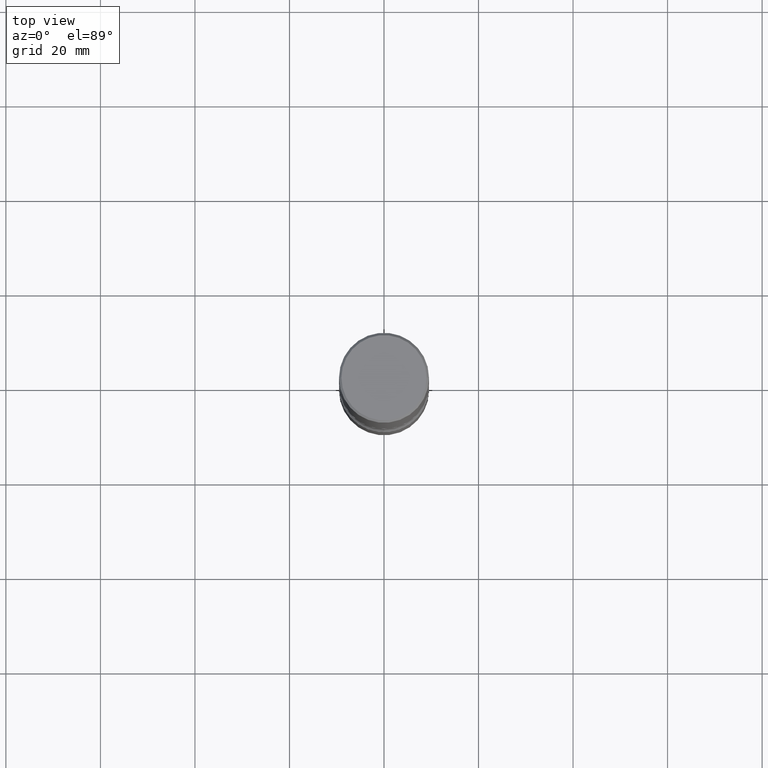
[diagram: clean part render]
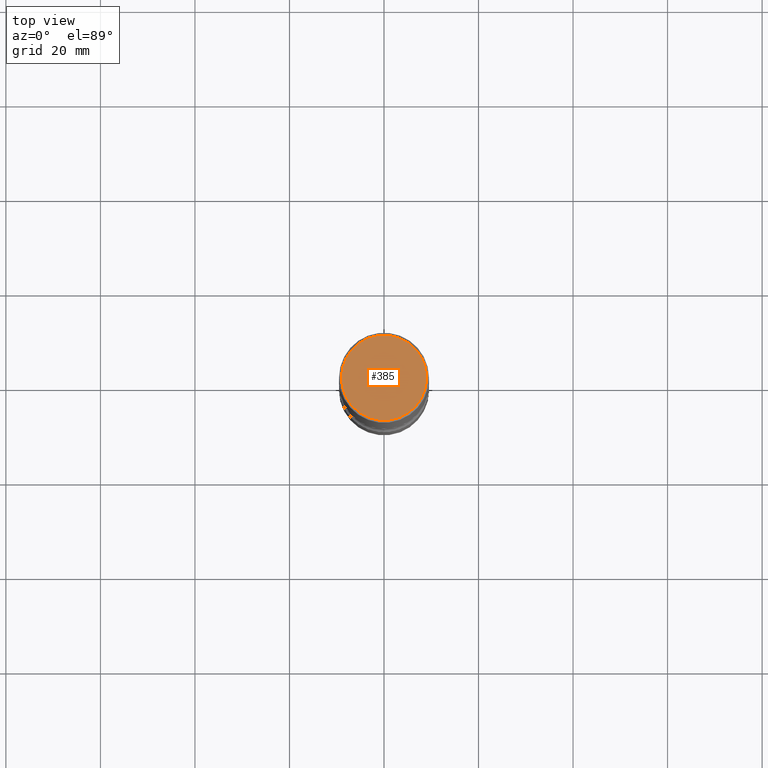
[diagram: same view with one face highlighted and labeled with its STEP entity id]
A machine part, top view. The second image highlights one B-rep face of the part: STEP entity #385.
In plain terms, the highlighted planar face has unit normal (0, -0, -1).
Its self-contained STEP definition (entity closure, byte-faithful):
#26 = EDGE_LOOP ( 'NONE', ( #511, #251 ) ) ;
#61 = CARTESIAN_POINT ( 'NONE',  ( 2.478951750578624998E-15, 0.3550000000000000377, -1.237341619044266624E-15 ) ) ;
#88 = CARTESIAN_POINT ( 'NONE',  ( -0.3550000000000000377, 2.513866563967055858E-15, 4.268512490082953109E-18 ) ) ;
#110 = EDGE_CURVE ( 'NONE', #413, #199, #512, .T. ) ;
#133 = DIRECTION ( 'NONE',  ( -2.445468806185136597E-29, 3.491481338843145583E-15, 1.000000000000000000 ) ) ;
#144 = CARTESIAN_POINT ( 'NONE',  ( 0.3550000000000000377, -2.538996582575041048E-15, 4.268512490117958041E-18 ) ) ;
#146 = AXIS2_PLACEMENT_3D ( 'NONE', #161, #336, #509 ) ;
#161 = CARTESIAN_POINT ( 'NONE',  ( -1.043851414335219820E-46, 1.490343170380447200E-32, 4.268512490100411279E-18 ) ) ;
#199 = VERTEX_POINT ( 'NONE', #88 ) ;
#209 = EDGE_CURVE ( 'NONE', #199, #413, #483, .T. ) ;
#251 = ORIENTED_EDGE ( 'NONE', *, *, #110, .T. ) ;
#285 = DIRECTION ( 'NONE',  ( 2.438088387897960049E-29, -3.491481338843145188E-15, -1.000000000000000000 ) ) ;
#305 = DIRECTION ( 'NONE',  ( 1.000000000000000000, -6.982962677686266711E-15, 4.876231632511987623E-29 ) ) ;
#328 = PLANE ( 'NONE',  #390 ) ;
#336 = DIRECTION ( 'NONE',  ( -2.445468806185136597E-29, 3.491481338843145583E-15, 1.000000000000000000 ) ) ;
#385 = ADVANCED_FACE ( 'NONE', ( #495 ), #328, .F. ) ;
#390 = AXIS2_PLACEMENT_3D ( 'NONE', #61, #285, #454 ) ;
#413 = VERTEX_POINT ( 'NONE', #144 ) ;
#437 = CARTESIAN_POINT ( 'NONE',  ( -1.043851414335219820E-46, 1.490343170380447200E-32, 4.268512490100411279E-18 ) ) ;
#454 = DIRECTION ( 'NONE',  ( -1.000000000000000000, 6.982962677686265922E-15, -4.876176775795935793E-29 ) ) ;
#483 = CIRCLE ( 'NONE', #549, 0.3550000000000000377 ) ;
#495 = FACE_OUTER_BOUND ( 'NONE', #26, .T. ) ;
#509 = DIRECTION ( 'NONE',  ( 1.000000000000000000, -6.982962677686266711E-15, 4.876231632511987623E-29 ) ) ;
#511 = ORIENTED_EDGE ( 'NONE', *, *, #209, .T. ) ;
#512 = CIRCLE ( 'NONE', #146, 0.3550000000000000377 ) ;
#549 = AXIS2_PLACEMENT_3D ( 'NONE', #437, #133, #305 ) ;